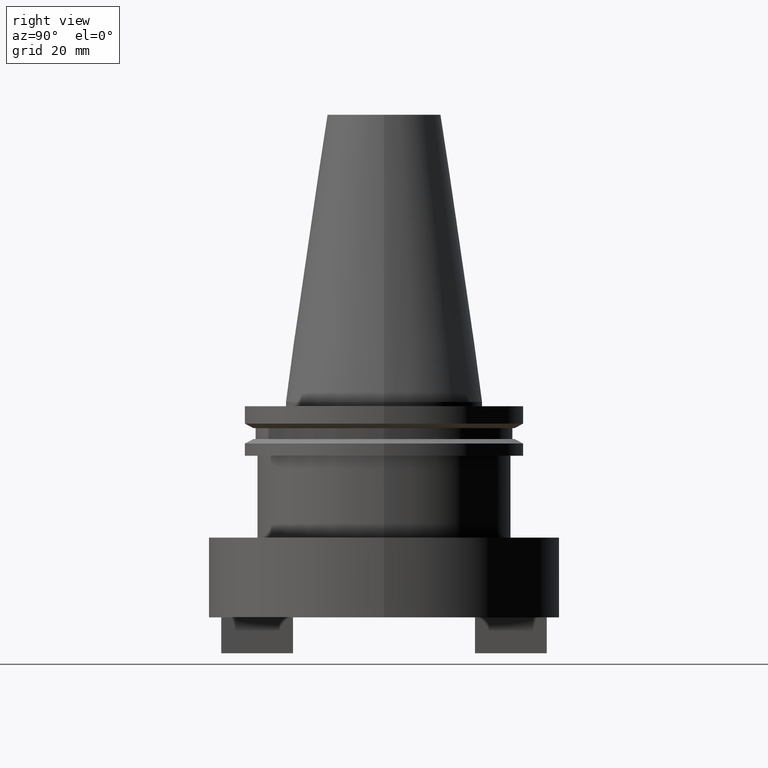
[diagram: clean part render]
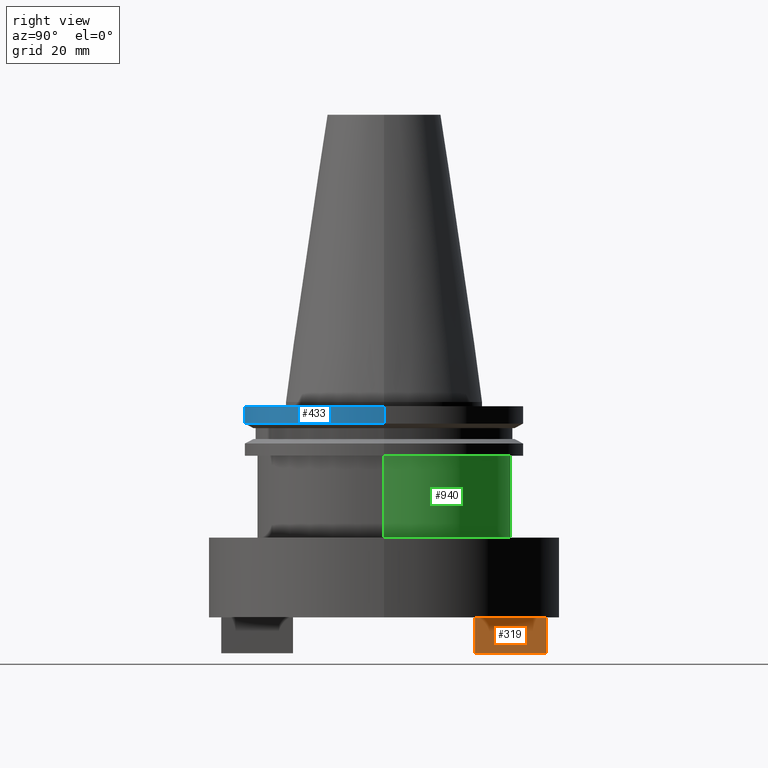
[diagram: same view with three faces highlighted in distinct colors, each labeled with its STEP entity id]
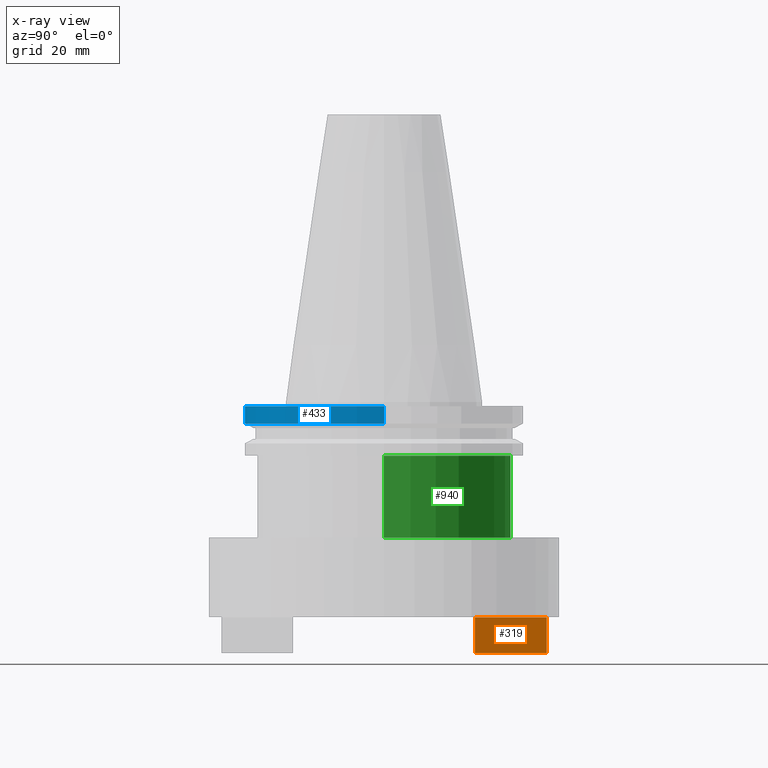
[diagram: x-ray of the same camera — body ghosted, the three highlighted faces saturated]
A machine part, right view with three faces highlighted in distinct colors.
The next image is the same camera in x-ray (body ghosted, the three faces saturated) — at least one of them is partly hidden behind the body in this view.
Their STEP definitions:

[orange] entity #319 — the highlighted planar face has unit normal (-1, 0, 0).
#79 = VERTEX_POINT ( 'NONE', #441 ) ;
#102 = DIRECTION ( 'NONE',  ( -1.000000000000000000, 6.829619984160658046E-17, 0.000000000000000000 ) ) ;
#230 = CARTESIAN_POINT ( 'NONE',  ( 12.70000000000000462, 57.58999999999999631, -88.90000000000001990 ) ) ;
#255 = VECTOR ( 'NONE', #759, 1000.000000000000000 ) ;
#258 = CARTESIAN_POINT ( 'NONE',  ( 12.70000000000000284, 32.18999999999999773, -88.90000000000001990 ) ) ;
#275 = EDGE_LOOP ( 'NONE', ( #602, #949, #957, #405 ) ) ;
#304 = VECTOR ( 'NONE', #557, 1000.000000000000000 ) ;
#319 = ADVANCED_FACE ( 'NONE', ( #527 ), #374, .F. ) ;
#374 = PLANE ( 'NONE',  #942 ) ;
#389 = DIRECTION ( 'NONE',  ( -6.829619984160658046E-17, -1.000000000000000000, 0.000000000000000000 ) ) ;
#399 = CARTESIAN_POINT ( 'NONE',  ( 12.70000000000000462, 57.58999999999999631, -76.20000000000001705 ) ) ;
#403 = EDGE_CURVE ( 'NONE', #536, #776, #649, .T. ) ;
#404 = LINE ( 'NONE', #399, #304 ) ;
#405 = ORIENTED_EDGE ( 'NONE', *, *, #1089, .T. ) ;
#408 = EDGE_CURVE ( 'NONE', #79, #808, #404, .T. ) ;
#416 = LINE ( 'NONE', #258, #255 ) ;
#441 = CARTESIAN_POINT ( 'NONE',  ( 12.70000000000000462, 57.58999999999999631, -76.20000000000001705 ) ) ;
#527 = FACE_OUTER_BOUND ( 'NONE', #275, .T. ) ;
#536 = VERTEX_POINT ( 'NONE', #960 ) ;
#557 = DIRECTION ( 'NONE',  ( -6.829619984160658046E-17, -1.000000000000000000, 0.000000000000000000 ) ) ;
#602 = ORIENTED_EDGE ( 'NONE', *, *, #408, .T. ) ;
#617 = VECTOR ( 'NONE', #389, 1000.000000000000000 ) ;
#649 = LINE ( 'NONE', #230, #617 ) ;
#660 = LINE ( 'NONE', #1088, #754 ) ;
#737 = DIRECTION ( 'NONE',  ( -0.000000000000000000, -0.000000000000000000, 1.000000000000000000 ) ) ;
#754 = VECTOR ( 'NONE', #737, 1000.000000000000000 ) ;
#759 = DIRECTION ( 'NONE',  ( -0.000000000000000000, -0.000000000000000000, 1.000000000000000000 ) ) ;
#771 = CARTESIAN_POINT ( 'NONE',  ( 12.70000000000000284, 32.18999999999999773, -76.20000000000001705 ) ) ;
#776 = VERTEX_POINT ( 'NONE', #873 ) ;
#808 = VERTEX_POINT ( 'NONE', #771 ) ;
#857 = CARTESIAN_POINT ( 'NONE',  ( 12.70000000000000462, 57.58999999999999631, -88.90000000000001990 ) ) ;
#873 = CARTESIAN_POINT ( 'NONE',  ( 12.70000000000000284, 32.18999999999999773, -88.90000000000001990 ) ) ;
#942 = AXIS2_PLACEMENT_3D ( 'NONE', #857, #102, #1036 ) ;
#949 = ORIENTED_EDGE ( 'NONE', *, *, #1065, .F. ) ;
#957 = ORIENTED_EDGE ( 'NONE', *, *, #403, .F. ) ;
#960 = CARTESIAN_POINT ( 'NONE',  ( 12.70000000000000462, 57.58999999999999631, -88.90000000000001990 ) ) ;
#1036 = DIRECTION ( 'NONE',  ( -6.829619984160658046E-17, -1.000000000000000000, 0.000000000000000000 ) ) ;
#1065 = EDGE_CURVE ( 'NONE', #776, #808, #416, .T. ) ;
#1088 = CARTESIAN_POINT ( 'NONE',  ( 12.70000000000000462, 57.58999999999999631, -88.90000000000001990 ) ) ;
#1089 = EDGE_CURVE ( 'NONE', #536, #79, #660, .T. ) ;

[blue] entity #433 — the highlighted cylindrical surface (partial cylindrical patch) has radius 49.215 mm, axis along (-0, -0, 1).
#11 = AXIS2_PLACEMENT_3D ( 'NONE', #561, #149, #895 ) ;
#41 = VERTEX_POINT ( 'NONE', #585 ) ;
#118 = DIRECTION ( 'NONE',  ( -0.000000000000000000, -0.000000000000000000, 1.000000000000000000 ) ) ;
#120 = VERTEX_POINT ( 'NONE', #1076 ) ;
#131 = CARTESIAN_POINT ( 'NONE',  ( 0.000000000000000000, 0.000000000000000000, -1.499999999999987566 ) ) ;
#149 = DIRECTION ( 'NONE',  ( -0.000000000000000000, -0.000000000000000000, 1.000000000000000000 ) ) ;
#215 = EDGE_CURVE ( 'NONE', #41, #333, #710, .T. ) ;
#218 = DIRECTION ( 'NONE',  ( -0.000000000000000000, -0.000000000000000000, 1.000000000000000000 ) ) ;
#228 = VECTOR ( 'NONE', #118, 1000.000000000000000 ) ;
#264 = ORIENTED_EDGE ( 'NONE', *, *, #1011, .T. ) ;
#311 = ORIENTED_EDGE ( 'NONE', *, *, #1077, .T. ) ;
#333 = VERTEX_POINT ( 'NONE', #807 ) ;
#342 = DIRECTION ( 'NONE',  ( -0.000000000000000000, -0.000000000000000000, 1.000000000000000000 ) ) ;
#379 = AXIS2_PLACEMENT_3D ( 'NONE', #1082, #342, #588 ) ;
#414 = EDGE_CURVE ( 'NONE', #333, #642, #913, .T. ) ;
#420 = LINE ( 'NONE', #506, #813 ) ;
#433 = ADVANCED_FACE ( 'NONE', ( #729 ), #481, .T. ) ;
#481 = CYLINDRICAL_SURFACE ( 'NONE', #11, 49.21499999999999631 ) ;
#493 = ORIENTED_EDGE ( 'NONE', *, *, #215, .F. ) ;
#506 = CARTESIAN_POINT ( 'NONE',  ( 49.21499999999999631, 0.000000000000000000, 101.5999999999999943 ) ) ;
#529 = EDGE_LOOP ( 'NONE', ( #493, #264, #311, #747 ) ) ;
#540 = CARTESIAN_POINT ( 'NONE',  ( -49.21499999999999631, 6.027099222003697826E-15, 101.5999999999999943 ) ) ;
#561 = CARTESIAN_POINT ( 'NONE',  ( 0.000000000000000000, 0.000000000000000000, 101.5999999999999943 ) ) ;
#585 = CARTESIAN_POINT ( 'NONE',  ( -49.21500000000000341, 6.027099222003699404E-15, -7.652389855251379380 ) ) ;
#588 = DIRECTION ( 'NONE',  ( 1.000000000000000000, 0.000000000000000000, 0.000000000000000000 ) ) ;
#638 = AXIS2_PLACEMENT_3D ( 'NONE', #131, #218, #816 ) ;
#642 = VERTEX_POINT ( 'NONE', #1071 ) ;
#707 = CIRCLE ( 'NONE', #379, 49.21500000000000341 ) ;
#710 = LINE ( 'NONE', #540, #228 ) ;
#729 = FACE_OUTER_BOUND ( 'NONE', #529, .T. ) ;
#746 = DIRECTION ( 'NONE',  ( -0.000000000000000000, -0.000000000000000000, 1.000000000000000000 ) ) ;
#747 = ORIENTED_EDGE ( 'NONE', *, *, #414, .F. ) ;
#807 = CARTESIAN_POINT ( 'NONE',  ( -49.21499999999999631, 6.027099222003697826E-15, -1.499999999999987566 ) ) ;
#813 = VECTOR ( 'NONE', #746, 1000.000000000000000 ) ;
#816 = DIRECTION ( 'NONE',  ( 1.000000000000000000, 0.000000000000000000, 0.000000000000000000 ) ) ;
#895 = DIRECTION ( 'NONE',  ( 1.000000000000000000, 0.000000000000000000, 0.000000000000000000 ) ) ;
#913 = CIRCLE ( 'NONE', #638, 49.21499999999999631 ) ;
#1011 = EDGE_CURVE ( 'NONE', #41, #120, #707, .T. ) ;
#1071 = CARTESIAN_POINT ( 'NONE',  ( 49.21499999999999631, 0.000000000000000000, -1.499999999999987566 ) ) ;
#1076 = CARTESIAN_POINT ( 'NONE',  ( 49.21500000000000341, 0.000000000000000000, -7.652389855251379380 ) ) ;
#1077 = EDGE_CURVE ( 'NONE', #120, #642, #420, .T. ) ;
#1082 = CARTESIAN_POINT ( 'NONE',  ( 0.000000000000000000, 0.000000000000000000, -7.652389855251379380 ) ) ;

[green] entity #940 — the highlighted cylindrical surface (partial cylindrical patch) has radius 45 mm, axis along (-0, -0, 1).
#25 = CARTESIAN_POINT ( 'NONE',  ( -45.00000000000000000, 5.510910596163089556E-15, -48.00999999999999801 ) ) ;
#61 = EDGE_LOOP ( 'NONE', ( #465, #950, #322, #706 ) ) ;
#109 = AXIS2_PLACEMENT_3D ( 'NONE', #1062, #164, #908 ) ;
#122 = DIRECTION ( 'NONE',  ( 1.000000000000000000, 0.000000000000000000, 0.000000000000000000 ) ) ;
#164 = DIRECTION ( 'NONE',  ( -0.000000000000000000, -0.000000000000000000, 1.000000000000000000 ) ) ;
#174 = CARTESIAN_POINT ( 'NONE',  ( 45.00000000000000000, 0.000000000000000000, 101.5999999999999943 ) ) ;
#199 = DIRECTION ( 'NONE',  ( -0.000000000000000000, -0.000000000000000000, 1.000000000000000000 ) ) ;
#229 = CARTESIAN_POINT ( 'NONE',  ( 0.000000000000000000, 0.000000000000000000, 101.5999999999999943 ) ) ;
#309 = VECTOR ( 'NONE', #346, 1000.000000000000000 ) ;
#321 = VERTEX_POINT ( 'NONE', #775 ) ;
#322 = ORIENTED_EDGE ( 'NONE', *, *, #599, .F. ) ;
#346 = DIRECTION ( 'NONE',  ( -0.000000000000000000, -0.000000000000000000, 1.000000000000000000 ) ) ;
#371 = CARTESIAN_POINT ( 'NONE',  ( -45.00000000000000000, 5.510910596163089556E-15, -19.04999999999998295 ) ) ;
#372 = CIRCLE ( 'NONE', #924, 45.00000000000000000 ) ;
#391 = FACE_OUTER_BOUND ( 'NONE', #61, .T. ) ;
#465 = ORIENTED_EDGE ( 'NONE', *, *, #985, .T. ) ;
#467 = DIRECTION ( 'NONE',  ( -0.000000000000000000, -0.000000000000000000, 1.000000000000000000 ) ) ;
#537 = CIRCLE ( 'NONE', #109, 45.00000000000000000 ) ;
#544 = CARTESIAN_POINT ( 'NONE',  ( -45.00000000000000000, 5.510910596163089556E-15, 101.5999999999999943 ) ) ;
#549 = CYLINDRICAL_SURFACE ( 'NONE', #830, 45.00000000000000000 ) ;
#565 = VERTEX_POINT ( 'NONE', #25 ) ;
#582 = VECTOR ( 'NONE', #467, 1000.000000000000000 ) ;
#589 = VERTEX_POINT ( 'NONE', #371 ) ;
#599 = EDGE_CURVE ( 'NONE', #321, #589, #372, .T. ) ;
#651 = DIRECTION ( 'NONE',  ( -0.000000000000000000, -0.000000000000000000, 1.000000000000000000 ) ) ;
#664 = LINE ( 'NONE', #174, #309 ) ;
#706 = ORIENTED_EDGE ( 'NONE', *, *, #1004, .F. ) ;
#709 = CARTESIAN_POINT ( 'NONE',  ( 0.000000000000000000, 0.000000000000000000, -19.04999999999998295 ) ) ;
#768 = VERTEX_POINT ( 'NONE', #794 ) ;
#775 = CARTESIAN_POINT ( 'NONE',  ( 45.00000000000000000, 0.000000000000000000, -19.04999999999998295 ) ) ;
#794 = CARTESIAN_POINT ( 'NONE',  ( 45.00000000000000000, 0.000000000000000000, -48.00999999999999801 ) ) ;
#820 = EDGE_CURVE ( 'NONE', #565, #589, #952, .T. ) ;
#830 = AXIS2_PLACEMENT_3D ( 'NONE', #229, #651, #1068 ) ;
#908 = DIRECTION ( 'NONE',  ( 1.000000000000000000, 0.000000000000000000, 0.000000000000000000 ) ) ;
#924 = AXIS2_PLACEMENT_3D ( 'NONE', #709, #199, #122 ) ;
#940 = ADVANCED_FACE ( 'NONE', ( #391 ), #549, .T. ) ;
#950 = ORIENTED_EDGE ( 'NONE', *, *, #820, .T. ) ;
#952 = LINE ( 'NONE', #544, #582 ) ;
#985 = EDGE_CURVE ( 'NONE', #768, #565, #537, .T. ) ;
#1004 = EDGE_CURVE ( 'NONE', #768, #321, #664, .T. ) ;
#1062 = CARTESIAN_POINT ( 'NONE',  ( 0.000000000000000000, 0.000000000000000000, -48.00999999999999801 ) ) ;
#1068 = DIRECTION ( 'NONE',  ( 1.000000000000000000, 0.000000000000000000, 0.000000000000000000 ) ) ;